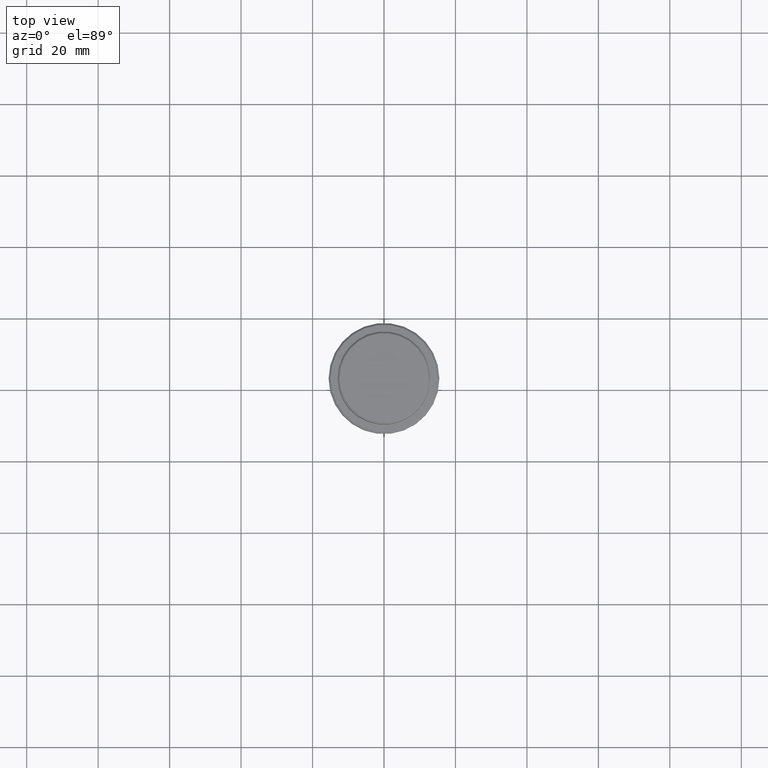
[diagram: clean part render]
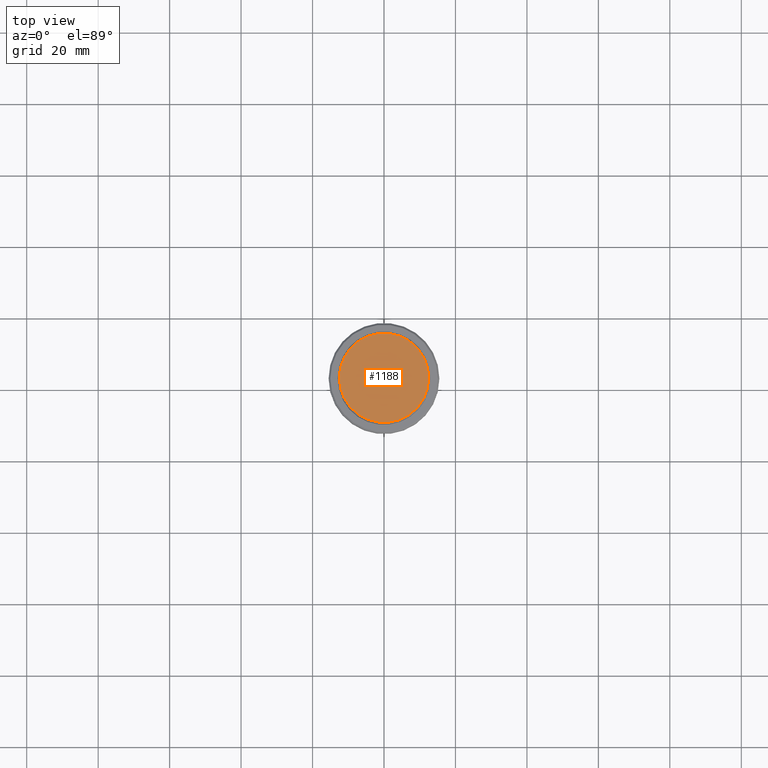
[diagram: same view with one face highlighted and labeled with its STEP entity id]
A machine part, top view. The second image highlights one B-rep face of the part: STEP entity #1188.
In plain terms, the highlighted planar face has unit normal (0, -0, 1).
Its self-contained STEP definition (entity closure, byte-faithful):
#44 = CIRCLE ( 'NONE', #426, 12.49999999999998579 ) ;
#76 = EDGE_CURVE ( 'NONE', #1362, #1376, #834, .T. ) ;
#83 = EDGE_CURVE ( 'NONE', #1376, #1362, #44, .T. ) ;
#111 = DIRECTION ( 'NONE',  ( 1.000000000000000000, 0.000000000000000000, 0.000000000000000000 ) ) ;
#119 = CARTESIAN_POINT ( 'NONE',  ( 0.000000000000000000, 0.000000000000000000, 0.000000000000000000 ) ) ;
#234 = DIRECTION ( 'NONE',  ( 0.000000000000000000, -0.000000000000000000, 1.000000000000000000 ) ) ;
#323 = EDGE_LOOP ( 'NONE', ( #1175, #1240 ) ) ;
#426 = AXIS2_PLACEMENT_3D ( 'NONE', #650, #877, #666 ) ;
#450 = AXIS2_PLACEMENT_3D ( 'NONE', #885, #743, #660 ) ;
#487 = CARTESIAN_POINT ( 'NONE',  ( 12.49999999999998579, 1.561424668912874125E-15, 0.000000000000000000 ) ) ;
#546 = PLANE ( 'NONE',  #1364 ) ;
#572 = CARTESIAN_POINT ( 'NONE',  ( -12.49999999999998579, 0.000000000000000000, 0.000000000000000000 ) ) ;
#650 = CARTESIAN_POINT ( 'NONE',  ( 0.000000000000000000, 0.000000000000000000, 0.000000000000000000 ) ) ;
#660 = DIRECTION ( 'NONE',  ( 1.000000000000000000, 0.000000000000000000, 0.000000000000000000 ) ) ;
#666 = DIRECTION ( 'NONE',  ( 1.000000000000000000, 0.000000000000000000, 0.000000000000000000 ) ) ;
#743 = DIRECTION ( 'NONE',  ( -0.000000000000000000, -0.000000000000000000, 1.000000000000000000 ) ) ;
#834 = CIRCLE ( 'NONE', #450, 12.49999999999998579 ) ;
#877 = DIRECTION ( 'NONE',  ( -0.000000000000000000, -0.000000000000000000, 1.000000000000000000 ) ) ;
#885 = CARTESIAN_POINT ( 'NONE',  ( 0.000000000000000000, 0.000000000000000000, 0.000000000000000000 ) ) ;
#1175 = ORIENTED_EDGE ( 'NONE', *, *, #83, .T. ) ;
#1188 = ADVANCED_FACE ( 'NONE', ( #1206 ), #546, .T. ) ;
#1206 = FACE_OUTER_BOUND ( 'NONE', #323, .T. ) ;
#1240 = ORIENTED_EDGE ( 'NONE', *, *, #76, .T. ) ;
#1362 = VERTEX_POINT ( 'NONE', #487 ) ;
#1364 = AXIS2_PLACEMENT_3D ( 'NONE', #119, #234, #111 ) ;
#1376 = VERTEX_POINT ( 'NONE', #572 ) ;